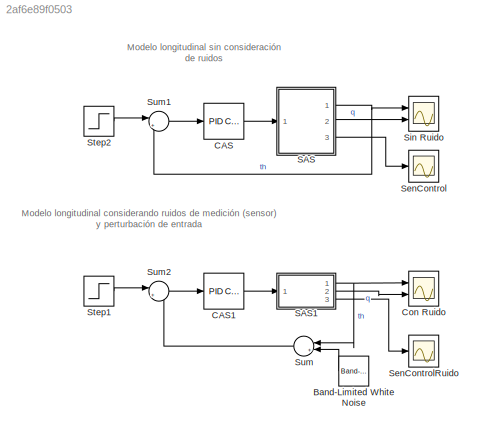
MODEL slx_2af6e89f0503
KIND model
CONFIG AbsTol = auto
CONFIG EnableMultiTasking = off
CONFIG FixedStep = auto
CONFIG MaxStep = auto
CONFIG MinStep = auto
CONFIG RelTol = 1e-3
CONFIG SampleTimeConstraint = Unconstrained
CONFIG SolverName = VariableStepAuto
CONFIG StartTime = 0.0
CONFIG StopTime = 10
BLOCK [Reference] Band-Limited White Noise  REF=simulink/Sources/Band-Limited
White Noise
  Ports = [0, 1]
  SourceBlock = simulink/Sources/Band-Limited\nWhite Noise
  SourceProductBaseCode = SL
  SourceType = Band-Limited White Noise.
BLOCK [Reference] CAS  REF=slpidlib/PID Controller
  Ports = [1, 1]
  SourceBlock = slpidlib/PID Controller
  SourceProductBaseCode = SL
  SourceType = PID 1dof
BLOCK [Reference] CAS1  REF=slpidlib/PID Controller
  Ports = [1, 1]
  SourceBlock = slpidlib/PID Controller
  SourceProductBaseCode = SL
  SourceType = PID 1dof
BLOCK [Scope] Con Ruido
  Floating = off
  NumInputPorts = 2
  Ports = [2]
  ScopeSpecificationString = Simulink.scopes.TimeScopeBlockCfg('CurrentConfiguration', extmgr.ConfigurationSet(extmgr.Configuration('Core','General UI',true),extmgr.Configuration('Core','Source UI',true),extmgr.Configuration('Sources','WiredSimulink',true,'DataLoggingVariableName','ScopeData1'),extmgr.Configuration('Visuals','Time Domain',true,'PlotType','Line','SerializedDisplays',{struct('MinYLimReal','35.36331','MaxYLimRea...<+1692ch>
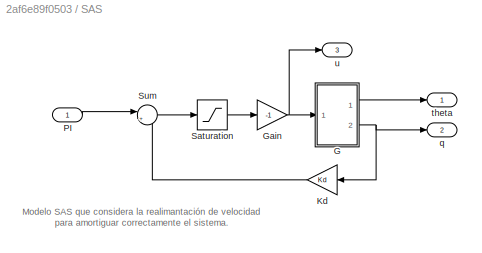
BLOCK [SubSystem] SAS
  Ports = [1, 3]
  RequestExecContextInheritance = off
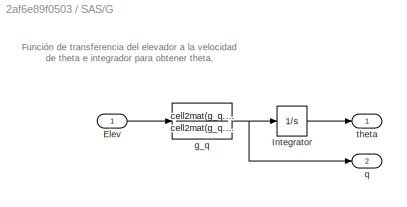
BLOCK [SubSystem] SAS/G
  Ports = [1, 2]
  RequestExecContextInheritance = off
BLOCK [Inport] SAS/G/Elev
BLOCK [Integrator] SAS/G/Integrator
  Ports = [1, 1]
BLOCK [TransferFcn] SAS/G/g_q
  Denominator = cell2mat(g_q.Denominator)
  Numerator = cell2mat(g_q.Numerator)
BLOCK [Outport] SAS/G/q
  Port = 2
BLOCK [Outport] SAS/G/theta
BLOCK [Gain] SAS/Gain
  Gain = -1
BLOCK [Gain] SAS/Kd
  Gain = Kd
BLOCK [Inport] SAS/PI
BLOCK [Saturate] SAS/Saturation
  LowerLimit = -30
  UpperLimit = 30
BLOCK [Sum] SAS/Sum
  Inputs = |+-
  Ports = [2, 1]
BLOCK [Outport] SAS/q
  Port = 2
BLOCK [Outport] SAS/theta
BLOCK [Outport] SAS/u
  Port = 3
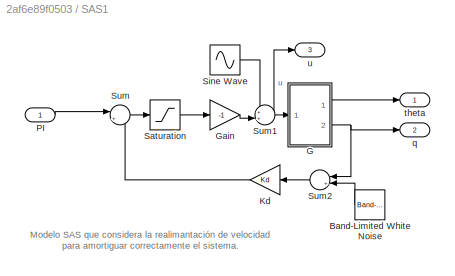
BLOCK [SubSystem] SAS1
  Ports = [1, 3]
  RequestExecContextInheritance = off
BLOCK [Reference] SAS1/Band-Limited White Noise  REF=simulink/Sources/Band-Limited
White Noise
  Ports = [0, 1]
  SourceBlock = simulink/Sources/Band-Limited\nWhite Noise
  SourceProductBaseCode = SL
  SourceType = Band-Limited White Noise.
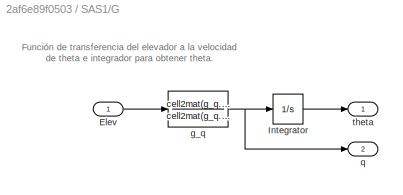
BLOCK [SubSystem] SAS1/G
  Ports = [1, 2]
  RequestExecContextInheritance = off
BLOCK [Inport] SAS1/G/Elev
BLOCK [Integrator] SAS1/G/Integrator
  Ports = [1, 1]
BLOCK [TransferFcn] SAS1/G/g_q
  Denominator = cell2mat(g_q.Denominator)
  Numerator = cell2mat(g_q.Numerator)
BLOCK [Outport] SAS1/G/q
  Port = 2
BLOCK [Outport] SAS1/G/theta
BLOCK [Gain] SAS1/Gain
  Gain = -1
BLOCK [Gain] SAS1/Kd
  Gain = Kd
BLOCK [Inport] SAS1/PI
BLOCK [Saturate] SAS1/Saturation
  LowerLimit = -30
  UpperLimit = 30
BLOCK [Sin] SAS1/Sine Wave
  Frequency = 12*pi
  Ports = [0, 1]
  SampleTime = 0
BLOCK [Sum] SAS1/Sum
  Inputs = |+-
  Ports = [2, 1]
BLOCK [Sum] SAS1/Sum1
  Inputs = ++|
  Ports = [2, 1]
BLOCK [Sum] SAS1/Sum2
  Inputs = |++
  NameLocation = top
  Ports = [2, 1]
BLOCK [Outport] SAS1/q
  Port = 2
BLOCK [Outport] SAS1/theta
BLOCK [Outport] SAS1/u
  Port = 3
BLOCK [Scope] SenControl
  Floating = off
  NumInputPorts = 1
  Ports = [1]
  ScopeSpecificationString = Simulink.scopes.TimeScopeBlockCfg('CurrentConfiguration', extmgr.ConfigurationSet(extmgr.Configuration('Core','General UI',true),extmgr.Configuration('Core','Source UI',true),extmgr.Configuration('Sources','WiredSimulink',true,'DataLoggingVariableName','ScopeData1'),extmgr.Configuration('Visuals','Time Domain',true,'SerializedDisplays',{struct('MinYLimReal','-36.72367','MaxYLimReal','30.51303','YL...<+1471ch>
BLOCK [Scope] SenControlRuido
  Floating = off
  NumInputPorts = 1
  Ports = [1]
  ScopeSpecificationString = Simulink.scopes.TimeScopeBlockCfg('CurrentConfiguration', extmgr.ConfigurationSet(extmgr.Configuration('Core','General UI',true),extmgr.Configuration('Core','Source UI',true),extmgr.Configuration('Sources','WiredSimulink',true,'DataLoggingVariableName','ScopeData2'),extmgr.Configuration('Visuals','Time Domain',true,'SerializedDisplays',{struct('MinYLimReal','-37.9431','MaxYLimReal','31.5427','YLab...<+1493ch>
BLOCK [Scope] Sin Ruido
  Floating = off
  NumInputPorts = 2
  Ports = [2]
  ScopeSpecificationString = Simulink.scopes.TimeScopeBlockCfg('CurrentConfiguration', extmgr.ConfigurationSet(extmgr.Configuration('Core','General UI',true),extmgr.Configuration('Core','Source UI',true),extmgr.Configuration('Sources','WiredSimulink',true,'DataLoggingVariableName','ScopeData1'),extmgr.Configuration('Visuals','Time Domain',true,'PlotType','Line','SerializedDisplays',{struct('MinYLimReal','-15.79333','MaxYLimRe...<+1686ch>
BLOCK [Step] Step1
  After = 40
  SampleTime = 0
BLOCK [Step] Step2
  After = 40
  SampleTime = 0
BLOCK [Sum] Sum
  Inputs = |++
  NameLocation = top
  Ports = [2, 1]
BLOCK [Sum] Sum1
  Inputs = |+-
  Ports = [2, 1]
BLOCK [Sum] Sum2
  Inputs = |+-
  Ports = [2, 1]
ANNOTATION (root): Modelo longitudinal considerando ruidos de medición (sensor) y perturbación de entrada
ANNOTATION (root): Modelo longitudinal sin consideración de ruidos
ANNOTATION SAS: Modelo SAS que considera la realimantación de velocidad para amortiguar correctamente el sistema.
ANNOTATION SAS/G: Función de transferencia del elevador a la velocidad de theta e integrador para obtener theta.
ANNOTATION SAS1: Modelo SAS que considera la realimantación de velocidad para amortiguar correctamente el sistema.
ANNOTATION SAS1/G: Función de transferencia del elevador a la velocidad de theta e integrador para obtener theta.
LINE Band-Limited White Noise:1 -> Sum:2
LINE CAS1:1 -> SAS1:1
LINE CAS:1 -> SAS:1
LINE SAS/G/Elev:1 -> SAS/G/g_q:1
LINE SAS/G/Integrator:1 -> SAS/G/theta:1
NET SAS/G/g_q:1 -> SAS/G/Integrator:1, SAS/G/q:1
LINE SAS/G:1 -> SAS/theta:1
NET SAS/G:2 -> SAS/Kd:1, SAS/q:1
NET SAS/Gain:1 -> SAS/G:1, SAS/u:1
LINE SAS/Kd:1 -> SAS/Sum:2
LINE SAS/PI:1 -> SAS/Sum:1
LINE SAS/Saturation:1 -> SAS/Gain:1
LINE SAS/Sum:1 -> SAS/Saturation:1
LINE SAS1/Band-Limited White Noise:1 -> SAS1/Sum2:2
LINE SAS1/G/Elev:1 -> SAS1/G/g_q:1
LINE SAS1/G/Integrator:1 -> SAS1/G/theta:1
NET SAS1/G/g_q:1 -> SAS1/G/Integrator:1, SAS1/G/q:1
LINE SAS1/G:1 -> SAS1/theta:1
NET SAS1/G:2 -> SAS1/Sum2:1, SAS1/q:1
LINE SAS1/Gain:1 -> SAS1/Sum1:2
LINE SAS1/Kd:1 -> SAS1/Sum:2
LINE SAS1/PI:1 -> SAS1/Sum:1
LINE SAS1/Saturation:1 -> SAS1/Gain:1
LINE SAS1/Sine Wave:1 -> SAS1/Sum1:1
NET SAS1/Sum1:1 -> SAS1/G:1, SAS1/u:1
LINE SAS1/Sum2:1 -> SAS1/Kd:1
LINE SAS1/Sum:1 -> SAS1/Saturation:1
NET SAS1:1 -> Con Ruido:1, Sum:1
LINE SAS1:2 -> Con Ruido:2
LINE SAS1:3 -> SenControlRuido:1
NET SAS:1 -> Sin Ruido:1, Sum1:2
LINE SAS:2 -> Sin Ruido:2
LINE SAS:3 -> SenControl:1
LINE Step1:1 -> Sum2:1
LINE Step2:1 -> Sum1:1
LINE Sum1:1 -> CAS:1
LINE Sum2:1 -> CAS1:1
LINE Sum:1 -> Sum2:2
note: NET lines group one-source signal fan-out (src -> all destinations, sorted); 1:1 wires keep LINE
